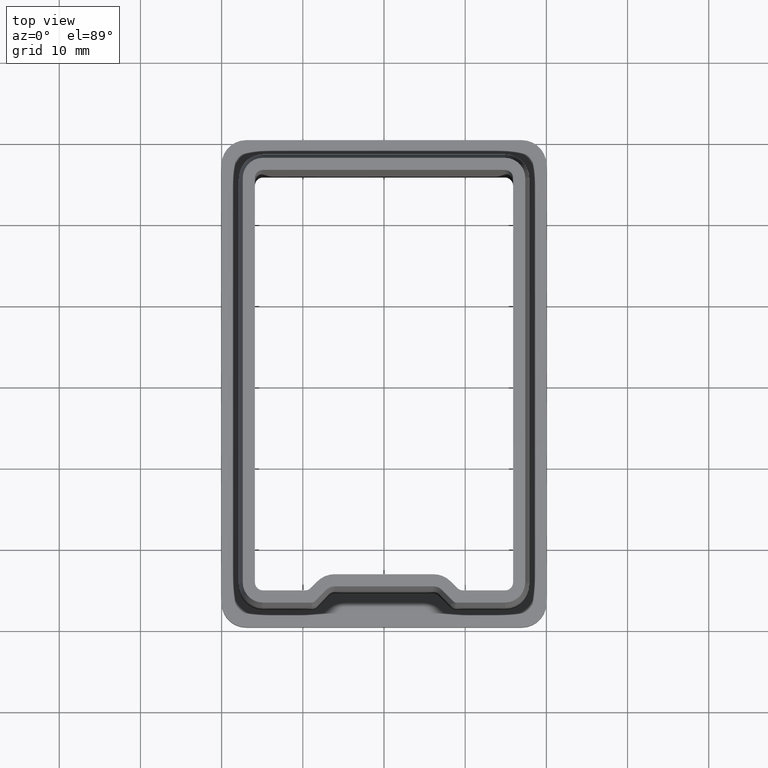
[diagram: clean part render]
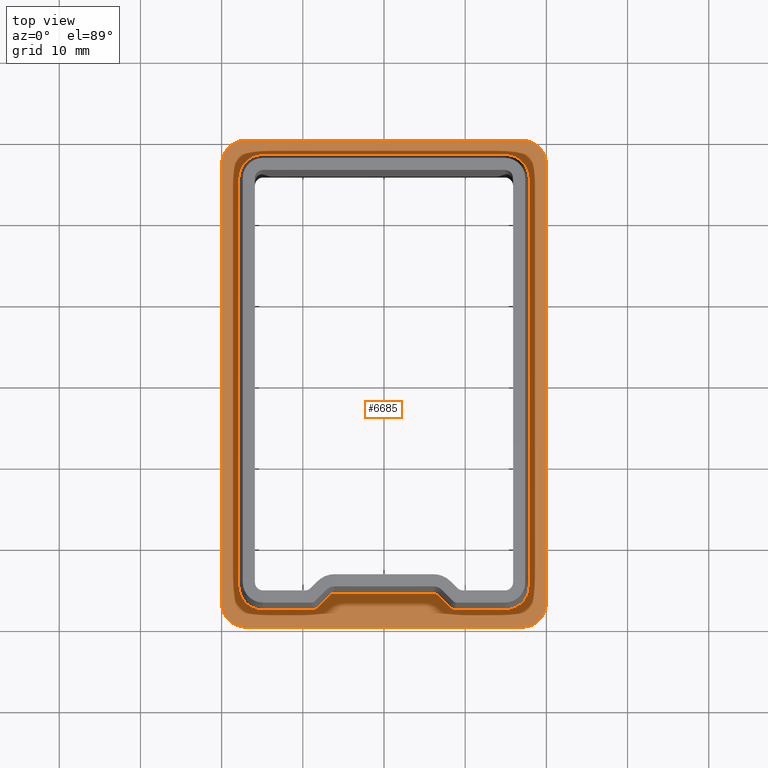
[diagram: same view with one face highlighted and labeled with its STEP entity id]
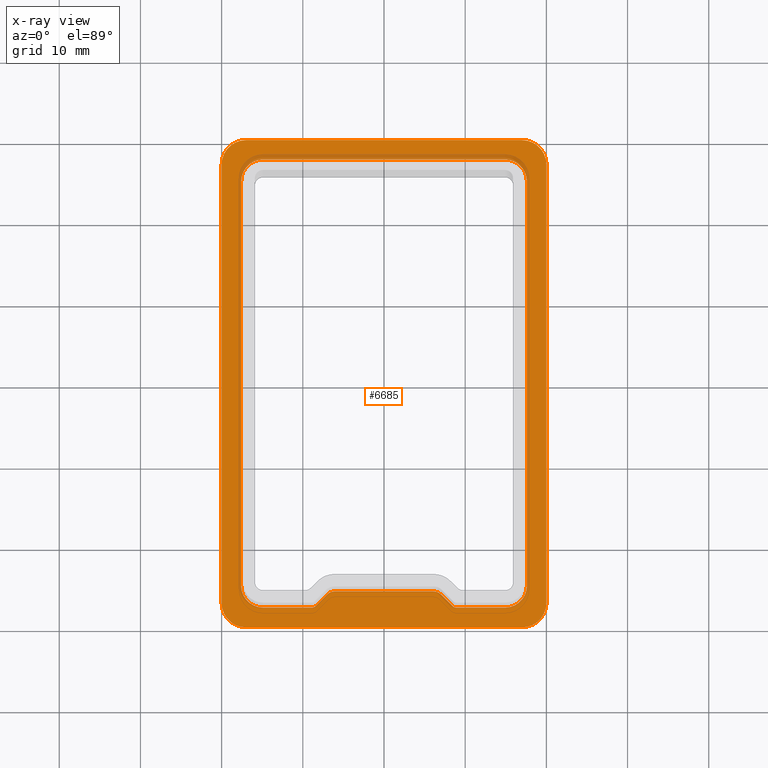
[diagram: x-ray of the same camera — body ghosted, the highlighted face saturated]
A machine part, top view. The second image highlights one B-rep face of the part: STEP entity #6685.
The next image is the same camera in x-ray: the body ghosted, the highlighted face saturated — about 13% of this face is hidden behind the body in this view.
In plain terms, the highlighted planar face has unit normal (-0, 0, 1).
Its self-contained STEP definition (entity closure, byte-faithful):
#113 = EDGE_CURVE ( 'NONE', #10184, #17198, #24442, .T. ) ;
#245 = DIRECTION ( 'NONE',  ( 1.000000000000000000, 0.0000000000000000000, 0.0000000000000000000 ) ) ;
#296 = CIRCLE ( 'NONE', #13561, 2.699999999999987300 ) ;
#472 = VERTEX_POINT ( 'NONE', #24514 ) ;
#478 = EDGE_CURVE ( 'NONE', #22038, #8449, #296, .T. ) ;
#619 = VERTEX_POINT ( 'NONE', #4529 ) ;
#777 = VECTOR ( 'NONE', #245, 1000.000000000000000 ) ;
#951 = VERTEX_POINT ( 'NONE', #10333 ) ;
#1238 = DIRECTION ( 'NONE',  ( 1.156482317317871500E-016, -1.000000000000000000, 0.0000000000000000000 ) ) ;
#1311 = DIRECTION ( 'NONE',  ( -0.7071067811865460200, 0.7071067811865489100, 0.0000000000000000000 ) ) ;
#1422 = ORIENTED_EDGE ( 'NONE', *, *, #21638, .F. ) ;
#1594 = DIRECTION ( 'NONE',  ( -0.0000000000000000000, -0.0000000000000000000, -1.000000000000000000 ) ) ;
#1825 = VECTOR ( 'NONE', #23245, 1000.000000000000100 ) ;
#1920 = ORIENTED_EDGE ( 'NONE', *, *, #18496, .T. ) ;
#2090 = LINE ( 'NONE', #7546, #6335 ) ;
#2547 = DIRECTION ( 'NONE',  ( 1.000000000000000000, 0.0000000000000000000, 0.0000000000000000000 ) ) ;
#2583 = DIRECTION ( 'NONE',  ( -0.0000000000000000000, -0.0000000000000000000, -1.000000000000000000 ) ) ;
#2629 = DIRECTION ( 'NONE',  ( -0.0000000000000000000, 0.0000000000000000000, 1.000000000000000000 ) ) ;
#2676 = CARTESIAN_POINT ( 'NONE',  ( -14.89999999999999300, -24.89999999999999500, 2.000000000000000000 ) ) ;
#3126 = CARTESIAN_POINT ( 'NONE',  ( -7.005025253169429300, -25.98076118445747400, 2.000000000000000000 ) ) ;
#3142 = AXIS2_PLACEMENT_3D ( 'NONE', #16403, #6662, #23984 ) ;
#3171 = AXIS2_PLACEMENT_3D ( 'NONE', #19177, #11490, #3716 ) ;
#3180 = EDGE_CURVE ( 'NONE', #8602, #10184, #13952, .T. ) ;
#3199 = DIRECTION ( 'NONE',  ( 1.000000000000000000, 0.0000000000000000000, 0.0000000000000000000 ) ) ;
#3364 = CARTESIAN_POINT ( 'NONE',  ( -17.00000000000000400, 26.99999999999999300, 2.000000000000000000 ) ) ;
#3465 = ORIENTED_EDGE ( 'NONE', *, *, #4785, .T. ) ;
#3716 = DIRECTION ( 'NONE',  ( -1.000000000000000000, 0.0000000000000000000, 0.0000000000000000000 ) ) ;
#3761 = CARTESIAN_POINT ( 'NONE',  ( 6.085786437626920200, -25.59999999999998700, 2.000000000000000000 ) ) ;
#3842 = EDGE_CURVE ( 'NONE', #22881, #619, #12774, .T. ) ;
#3932 = CARTESIAN_POINT ( 'NONE',  ( 0.0000000000000000000, 27.59999999999998000, 2.000000000000000000 ) ) ;
#4022 = LINE ( 'NONE', #24518, #5542 ) ;
#4081 = ORIENTED_EDGE ( 'NONE', *, *, #14275, .T. ) ;
#4300 = CARTESIAN_POINT ( 'NONE',  ( 14.89999999999999700, -27.59999999999998400, 2.000000000000000000 ) ) ;
#4427 = CARTESIAN_POINT ( 'NONE',  ( -16.99999999999999600, -27.00000000000001100, 2.000000000000000000 ) ) ;
#4499 = CARTESIAN_POINT ( 'NONE',  ( 17.59999999999998400, 24.89999999999999100, 2.000000000000000000 ) ) ;
#4529 = CARTESIAN_POINT ( 'NONE',  ( -17.59999999999998000, -24.89999999999999900, 2.000000000000000000 ) ) ;
#4763 = CARTESIAN_POINT ( 'NONE',  ( 17.00000000000000400, -27.00000000000001100, 2.000000000000000000 ) ) ;
#4785 = EDGE_CURVE ( 'NONE', #6976, #472, #24627, .T. ) ;
#4866 = CARTESIAN_POINT ( 'NONE',  ( 6.085786437626920200, -25.59999999999998700, 2.000000000000000000 ) ) ;
#4976 = CIRCLE ( 'NONE', #22183, 0.6999999999999853000 ) ;
#5039 = VERTEX_POINT ( 'NONE', #15583 ) ;
#5246 = VECTOR ( 'NONE', #21916, 1000.000000000000000 ) ;
#5542 = VECTOR ( 'NONE', #18899, 1000.000000000000000 ) ;
#5570 = LINE ( 'NONE', #13010, #7708 ) ;
#5703 = CARTESIAN_POINT ( 'NONE',  ( -20.00000000000000400, 26.99999999999999300, 2.000000000000000000 ) ) ;
#5778 = EDGE_CURVE ( 'NONE', #16813, #17730, #24606, .T. ) ;
#5961 = LINE ( 'NONE', #19466, #777 ) ;
#5964 = DIRECTION ( 'NONE',  ( 1.000000000000000000, 0.0000000000000000000, 0.0000000000000000000 ) ) ;
#6135 = PLANE ( 'NONE',  #11352 ) ;
#6186 = EDGE_CURVE ( 'NONE', #18399, #17915, #8744, .T. ) ;
#6315 = CARTESIAN_POINT ( 'NONE',  ( 14.89999999999998600, 27.59999999999998700, 2.000000000000000000 ) ) ;
#6335 = VECTOR ( 'NONE', #19432, 1000.000000000000000 ) ;
#6432 = ORIENTED_EDGE ( 'NONE', *, *, #478, .T. ) ;
#6443 = LINE ( 'NONE', #23425, #16236 ) ;
#6536 = DIRECTION ( 'NONE',  ( -0.0000000000000000000, 0.0000000000000000000, 1.000000000000000000 ) ) ;
#6662 = DIRECTION ( 'NONE',  ( 0.0000000000000000000, 0.0000000000000000000, 1.000000000000000000 ) ) ;
#6685 = ADVANCED_FACE ( 'NONE', ( #24869, #14824 ), #6135, .T. ) ;
#6900 = CARTESIAN_POINT ( 'NONE',  ( -19.99999999999999600, -30.00000000000001100, 2.000000000000000000 ) ) ;
#6916 = VERTEX_POINT ( 'NONE', #8797 ) ;
#6976 = VERTEX_POINT ( 'NONE', #11320 ) ;
#7258 = DIRECTION ( 'NONE',  ( -0.0000000000000000000, -0.0000000000000000000, -1.000000000000000000 ) ) ;
#7328 = VECTOR ( 'NONE', #17618, 1000.000000000000000 ) ;
#7425 = ORIENTED_EDGE ( 'NONE', *, *, #23096, .T. ) ;
#7546 = CARTESIAN_POINT ( 'NONE',  ( 19.99999999999999600, 29.99999999999999300, 2.000000000000000000 ) ) ;
#7681 = ORIENTED_EDGE ( 'NONE', *, *, #11669, .F. ) ;
#7708 = VECTOR ( 'NONE', #1311, 1000.000000000000100 ) ;
#8329 = EDGE_CURVE ( 'NONE', #6916, #24477, #9882, .T. ) ;
#8449 = VERTEX_POINT ( 'NONE', #17552 ) ;
#8483 = AXIS2_PLACEMENT_3D ( 'NONE', #21093, #11426, #11248 ) ;
#8494 = EDGE_CURVE ( 'NONE', #17198, #5039, #4976, .T. ) ;
#8559 = CARTESIAN_POINT ( 'NONE',  ( -8.419238815542515300, -27.39497474683056700, 2.000000000000000000 ) ) ;
#8602 = VERTEX_POINT ( 'NONE', #10597 ) ;
#8744 = CIRCLE ( 'NONE', #3171, 2.699999999999994000 ) ;
#8797 = CARTESIAN_POINT ( 'NONE',  ( 17.59999999999998400, -24.89999999999999100, 2.000000000000000000 ) ) ;
#8830 = ORIENTED_EDGE ( 'NONE', *, *, #9514, .T. ) ;
#8909 = LINE ( 'NONE', #4499, #16823 ) ;
#8974 = DIRECTION ( 'NONE',  ( 1.000000000000000000, 0.0000000000000000000, 0.0000000000000000000 ) ) ;
#9121 = CARTESIAN_POINT ( 'NONE',  ( 17.00000000000000000, 29.99999999999999300, 2.000000000000000000 ) ) ;
#9155 = VERTEX_POINT ( 'NONE', #20256 ) ;
#9477 = EDGE_CURVE ( 'NONE', #13856, #20892, #21851, .T. ) ;
#9514 = EDGE_CURVE ( 'NONE', #18387, #951, #5570, .T. ) ;
#9702 = ORIENTED_EDGE ( 'NONE', *, *, #113, .T. ) ;
#9710 = AXIS2_PLACEMENT_3D ( 'NONE', #15864, #19807, #13822 ) ;
#9882 = CIRCLE ( 'NONE', #10864, 2.699999999999990400 ) ;
#10011 = LINE ( 'NONE', #24617, #18581 ) ;
#10089 = CARTESIAN_POINT ( 'NONE',  ( 8.419238815542520600, -27.39497474683057700, 2.000000000000000000 ) ) ;
#10183 = DIRECTION ( 'NONE',  ( -0.0000000000000000000, -0.0000000000000000000, -1.000000000000000000 ) ) ;
#10184 = VERTEX_POINT ( 'NONE', #11435 ) ;
#10333 = CARTESIAN_POINT ( 'NONE',  ( 7.005025253169437200, -25.98076118445748500, 2.000000000000000000 ) ) ;
#10597 = CARTESIAN_POINT ( 'NONE',  ( -6.085786437626898900, -25.59999999999998700, 2.000000000000000000 ) ) ;
#10615 = ORIENTED_EDGE ( 'NONE', *, *, #6186, .T. ) ;
#10864 = AXIS2_PLACEMENT_3D ( 'NONE', #19281, #1594, #21428 ) ;
#10945 = EDGE_CURVE ( 'NONE', #9155, #6976, #22092, .T. ) ;
#11015 = EDGE_CURVE ( 'NONE', #13548, #8602, #13197, .T. ) ;
#11100 = DIRECTION ( 'NONE',  ( -1.000000000000000000, 0.0000000000000000000, 0.0000000000000000000 ) ) ;
#11248 = DIRECTION ( 'NONE',  ( 1.000000000000000000, 0.0000000000000000000, 0.0000000000000000000 ) ) ;
#11320 = CARTESIAN_POINT ( 'NONE',  ( 17.00000000000000700, -30.00000000000001100, 2.000000000000000000 ) ) ;
#11352 = AXIS2_PLACEMENT_3D ( 'NONE', #19574, #13736, #5964 ) ;
#11391 = EDGE_CURVE ( 'NONE', #24477, #19927, #6443, .T. ) ;
#11426 = DIRECTION ( 'NONE',  ( 0.0000000000000000000, 0.0000000000000000000, 1.000000000000000000 ) ) ;
#11435 = CARTESIAN_POINT ( 'NONE',  ( -7.005025253169429300, -25.98076118445747400, 2.000000000000000000 ) ) ;
#11463 = ORIENTED_EDGE ( 'NONE', *, *, #3180, .T. ) ;
#11481 = DIRECTION ( 'NONE',  ( -1.000000000000000000, -5.796142224761860600E-016, 0.0000000000000000000 ) ) ;
#11490 = DIRECTION ( 'NONE',  ( -0.0000000000000000000, -0.0000000000000000000, -1.000000000000000000 ) ) ;
#11669 = EDGE_CURVE ( 'NONE', #13856, #17730, #4022, .T. ) ;
#11930 = CARTESIAN_POINT ( 'NONE',  ( -17.59999999999998000, -24.89999999999999900, 2.000000000000000000 ) ) ;
#11971 = AXIS2_PLACEMENT_3D ( 'NONE', #4427, #6536, #12447 ) ;
#12007 = AXIS2_PLACEMENT_3D ( 'NONE', #4763, #2629, #2547 ) ;
#12072 = DIRECTION ( 'NONE',  ( -1.000000000000000000, 0.0000000000000000000, 0.0000000000000000000 ) ) ;
#12321 = CARTESIAN_POINT ( 'NONE',  ( -8.914213562373094000, -26.89999999999999900, 2.000000000000000000 ) ) ;
#12417 = EDGE_CURVE ( 'NONE', #17915, #6916, #8909, .T. ) ;
#12420 = VECTOR ( 'NONE', #14051, 1000.000000000000000 ) ;
#12447 = DIRECTION ( 'NONE',  ( 1.000000000000000000, 0.0000000000000000000, 0.0000000000000000000 ) ) ;
#12595 = DIRECTION ( 'NONE',  ( -1.000000000000000000, 0.0000000000000000000, 0.0000000000000000000 ) ) ;
#12774 = CIRCLE ( 'NONE', #18054, 2.699999999999987300 ) ;
#12837 = ORIENTED_EDGE ( 'NONE', *, *, #3842, .T. ) ;
#13003 = CIRCLE ( 'NONE', #3142, 1.300000000000008700 ) ;
#13010 = CARTESIAN_POINT ( 'NONE',  ( 8.419238815542520600, -27.39497474683057700, 2.000000000000000000 ) ) ;
#13197 = LINE ( 'NONE', #4866, #16868 ) ;
#13548 = VERTEX_POINT ( 'NONE', #3761 ) ;
#13561 = AXIS2_PLACEMENT_3D ( 'NONE', #22655, #7258, #11100 ) ;
#13736 = DIRECTION ( 'NONE',  ( -0.0000000000000000000, 0.0000000000000000000, 1.000000000000000000 ) ) ;
#13822 = DIRECTION ( 'NONE',  ( 1.000000000000000000, 0.0000000000000000000, 0.0000000000000000000 ) ) ;
#13856 = VERTEX_POINT ( 'NONE', #23037 ) ;
#13875 = DIRECTION ( 'NONE',  ( -1.000000000000000000, 0.0000000000000000000, 0.0000000000000000000 ) ) ;
#13952 = CIRCLE ( 'NONE', #8483, 1.300000000000009600 ) ;
#13953 = CARTESIAN_POINT ( 'NONE',  ( 14.89999999999998600, 27.59999999999998700, 2.000000000000000000 ) ) ;
#14026 = CIRCLE ( 'NONE', #21918, 0.6999999999999888500 ) ;
#14051 = DIRECTION ( 'NONE',  ( 0.0000000000000000000, 1.000000000000000000, 0.0000000000000000000 ) ) ;
#14275 = EDGE_CURVE ( 'NONE', #19927, #18387, #14026, .T. ) ;
#14812 = DIRECTION ( 'NONE',  ( -0.0000000000000000000, 0.0000000000000000000, 1.000000000000000000 ) ) ;
#14824 = FACE_BOUND ( 'NONE', #22967, .T. ) ;
#14865 = ORIENTED_EDGE ( 'NONE', *, *, #17502, .T. ) ;
#15366 = EDGE_CURVE ( 'NONE', #20892, #15604, #10011, .T. ) ;
#15550 = ORIENTED_EDGE ( 'NONE', *, *, #16343, .T. ) ;
#15583 = CARTESIAN_POINT ( 'NONE',  ( -8.914213562373090500, -27.59999999999998700, 2.000000000000000000 ) ) ;
#15604 = VERTEX_POINT ( 'NONE', #21901 ) ;
#15669 = CARTESIAN_POINT ( 'NONE',  ( -8.914213562373090500, -27.59999999999998700, 2.000000000000000000 ) ) ;
#15864 = CARTESIAN_POINT ( 'NONE',  ( 17.00000000000000000, 26.99999999999999300, 2.000000000000000000 ) ) ;
#16188 = DIRECTION ( 'NONE',  ( 0.0000000000000000000, -1.000000000000000000, 0.0000000000000000000 ) ) ;
#16236 = VECTOR ( 'NONE', #11481, 1000.000000000000000 ) ;
#16258 = VECTOR ( 'NONE', #8974, 1000.000000000000000 ) ;
#16343 = EDGE_CURVE ( 'NONE', #619, #22038, #19452, .T. ) ;
#16403 = CARTESIAN_POINT ( 'NONE',  ( 6.085786437626912200, -26.89999999999999900, 2.000000000000000000 ) ) ;
#16567 = ORIENTED_EDGE ( 'NONE', *, *, #10945, .T. ) ;
#16813 = VERTEX_POINT ( 'NONE', #24448 ) ;
#16823 = VECTOR ( 'NONE', #16188, 1000.000000000000000 ) ;
#16868 = VECTOR ( 'NONE', #24400, 1000.000000000000000 ) ;
#17122 = ORIENTED_EDGE ( 'NONE', *, *, #8329, .T. ) ;
#17198 = VERTEX_POINT ( 'NONE', #8559 ) ;
#17461 = EDGE_CURVE ( 'NONE', #8449, #24735, #5961, .T. ) ;
#17502 = EDGE_CURVE ( 'NONE', #15604, #9155, #23382, .T. ) ;
#17552 = CARTESIAN_POINT ( 'NONE',  ( -14.89999999999999700, 27.59999999999998000, 2.000000000000000000 ) ) ;
#17597 = CARTESIAN_POINT ( 'NONE',  ( -17.59999999999998000, 24.89999999999999100, 2.000000000000000000 ) ) ;
#17618 = DIRECTION ( 'NONE',  ( -1.000000000000000000, 5.796142224761855700E-016, 0.0000000000000000000 ) ) ;
#17692 = ORIENTED_EDGE ( 'NONE', *, *, #12417, .T. ) ;
#17705 = ORIENTED_EDGE ( 'NONE', *, *, #9477, .T. ) ;
#17711 = CARTESIAN_POINT ( 'NONE',  ( 8.914213562373095800, -26.89999999999999900, 2.000000000000000000 ) ) ;
#17730 = VERTEX_POINT ( 'NONE', #9121 ) ;
#17915 = VERTEX_POINT ( 'NONE', #23524 ) ;
#18054 = AXIS2_PLACEMENT_3D ( 'NONE', #2676, #24269, #12595 ) ;
#18373 = LINE ( 'NONE', #15669, #7328 ) ;
#18387 = VERTEX_POINT ( 'NONE', #10089 ) ;
#18399 = VERTEX_POINT ( 'NONE', #6315 ) ;
#18496 = EDGE_CURVE ( 'NONE', #951, #13548, #13003, .T. ) ;
#18581 = VECTOR ( 'NONE', #1238, 1000.000000000000000 ) ;
#18798 = ORIENTED_EDGE ( 'NONE', *, *, #25210, .F. ) ;
#18899 = DIRECTION ( 'NONE',  ( 1.000000000000000000, 0.0000000000000000000, 0.0000000000000000000 ) ) ;
#19177 = CARTESIAN_POINT ( 'NONE',  ( 14.89999999999999000, 24.89999999999999100, 2.000000000000000000 ) ) ;
#19281 = CARTESIAN_POINT ( 'NONE',  ( 14.89999999999999300, -24.89999999999999500, 2.000000000000000000 ) ) ;
#19432 = DIRECTION ( 'NONE',  ( 1.156482317317871500E-016, -1.000000000000000000, 0.0000000000000000000 ) ) ;
#19452 = LINE ( 'NONE', #11930, #12420 ) ;
#19466 = CARTESIAN_POINT ( 'NONE',  ( -14.89999999999999700, 27.59999999999998000, 2.000000000000000000 ) ) ;
#19574 = CARTESIAN_POINT ( 'NONE',  ( 0.0000000000000000000, 0.0000000000000000000, 2.000000000000000000 ) ) ;
#19807 = DIRECTION ( 'NONE',  ( -0.0000000000000000000, 0.0000000000000000000, 1.000000000000000000 ) ) ;
#19927 = VERTEX_POINT ( 'NONE', #23684 ) ;
#20256 = CARTESIAN_POINT ( 'NONE',  ( -16.99999999999999600, -30.00000000000001100, 2.000000000000000000 ) ) ;
#20587 = ORIENTED_EDGE ( 'NONE', *, *, #8494, .T. ) ;
#20639 = ORIENTED_EDGE ( 'NONE', *, *, #11391, .T. ) ;
#20892 = VERTEX_POINT ( 'NONE', #5703 ) ;
#21093 = CARTESIAN_POINT ( 'NONE',  ( -6.085786437626911300, -26.89999999999999900, 2.000000000000000000 ) ) ;
#21367 = ORIENTED_EDGE ( 'NONE', *, *, #17461, .T. ) ;
#21428 = DIRECTION ( 'NONE',  ( -1.000000000000000000, 0.0000000000000000000, 0.0000000000000000000 ) ) ;
#21638 = EDGE_CURVE ( 'NONE', #18399, #24735, #23274, .T. ) ;
#21851 = CIRCLE ( 'NONE', #22380, 2.999999999999999100 ) ;
#21901 = CARTESIAN_POINT ( 'NONE',  ( -19.99999999999999600, -27.00000000000001100, 2.000000000000000000 ) ) ;
#21916 = DIRECTION ( 'NONE',  ( -1.000000000000000000, -0.0000000000000000000, -0.0000000000000000000 ) ) ;
#21918 = AXIS2_PLACEMENT_3D ( 'NONE', #17711, #10183, #13875 ) ;
#22038 = VERTEX_POINT ( 'NONE', #17597 ) ;
#22061 = ORIENTED_EDGE ( 'NONE', *, *, #15366, .T. ) ;
#22092 = LINE ( 'NONE', #6900, #16258 ) ;
#22183 = AXIS2_PLACEMENT_3D ( 'NONE', #12321, #2583, #12072 ) ;
#22380 = AXIS2_PLACEMENT_3D ( 'NONE', #3364, #14812, #3199 ) ;
#22471 = ORIENTED_EDGE ( 'NONE', *, *, #11015, .T. ) ;
#22655 = CARTESIAN_POINT ( 'NONE',  ( -14.89999999999999300, 24.89999999999999500, 2.000000000000000000 ) ) ;
#22727 = EDGE_LOOP ( 'NONE', ( #7681, #17705, #22061, #14865, #16567, #3465, #18798, #24794 ) ) ;
#22881 = VERTEX_POINT ( 'NONE', #23273 ) ;
#22967 = EDGE_LOOP ( 'NONE', ( #4081, #8830, #1920, #22471, #11463, #9702, #20587, #7425, #12837, #15550, #6432, #21367, #1422, #10615, #17692, #17122, #20639 ) ) ;
#23037 = CARTESIAN_POINT ( 'NONE',  ( -17.00000000000000400, 29.99999999999999300, 2.000000000000000000 ) ) ;
#23096 = EDGE_CURVE ( 'NONE', #5039, #22881, #18373, .T. ) ;
#23245 = DIRECTION ( 'NONE',  ( -0.7071067811865460200, -0.7071067811865489100, 0.0000000000000000000 ) ) ;
#23273 = CARTESIAN_POINT ( 'NONE',  ( -14.89999999999999300, -27.59999999999998400, 2.000000000000000000 ) ) ;
#23274 = LINE ( 'NONE', #13953, #5246 ) ;
#23382 = CIRCLE ( 'NONE', #11971, 2.999999999999999100 ) ;
#23425 = CARTESIAN_POINT ( 'NONE',  ( 14.89999999999999700, -27.59999999999998400, 2.000000000000000000 ) ) ;
#23524 = CARTESIAN_POINT ( 'NONE',  ( 17.59999999999998400, 24.89999999999999100, 2.000000000000000000 ) ) ;
#23684 = CARTESIAN_POINT ( 'NONE',  ( 8.914213562373097600, -27.59999999999998700, 2.000000000000000000 ) ) ;
#23984 = DIRECTION ( 'NONE',  ( 1.000000000000000000, 0.0000000000000000000, 0.0000000000000000000 ) ) ;
#24269 = DIRECTION ( 'NONE',  ( -0.0000000000000000000, -0.0000000000000000000, -1.000000000000000000 ) ) ;
#24400 = DIRECTION ( 'NONE',  ( -1.000000000000000000, 0.0000000000000000000, 0.0000000000000000000 ) ) ;
#24442 = LINE ( 'NONE', #3126, #1825 ) ;
#24448 = CARTESIAN_POINT ( 'NONE',  ( 19.99999999999999600, 26.99999999999999300, 2.000000000000000000 ) ) ;
#24477 = VERTEX_POINT ( 'NONE', #4300 ) ;
#24514 = CARTESIAN_POINT ( 'NONE',  ( 20.00000000000000400, -27.00000000000001100, 2.000000000000000000 ) ) ;
#24518 = CARTESIAN_POINT ( 'NONE',  ( -20.00000000000000400, 29.99999999999999300, 2.000000000000000000 ) ) ;
#24606 = CIRCLE ( 'NONE', #9710, 2.999999999999999100 ) ;
#24617 = CARTESIAN_POINT ( 'NONE',  ( -20.00000000000000400, 29.99999999999999300, 2.000000000000000000 ) ) ;
#24627 = CIRCLE ( 'NONE', #12007, 2.999999999999999100 ) ;
#24735 = VERTEX_POINT ( 'NONE', #3932 ) ;
#24794 = ORIENTED_EDGE ( 'NONE', *, *, #5778, .T. ) ;
#24869 = FACE_OUTER_BOUND ( 'NONE', #22727, .T. ) ;
#25210 = EDGE_CURVE ( 'NONE', #16813, #472, #2090, .T. ) ;